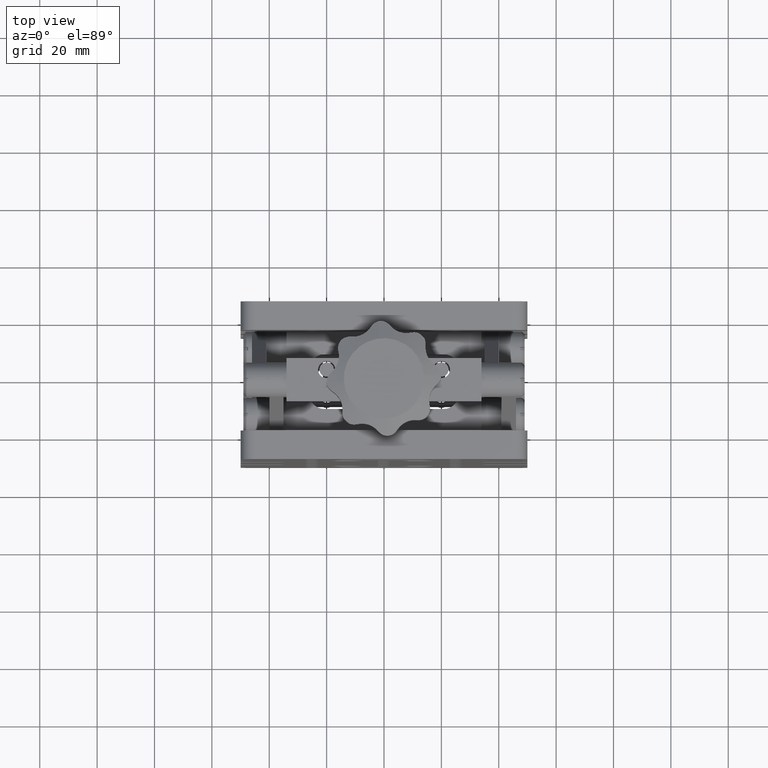
[diagram: clean part render]
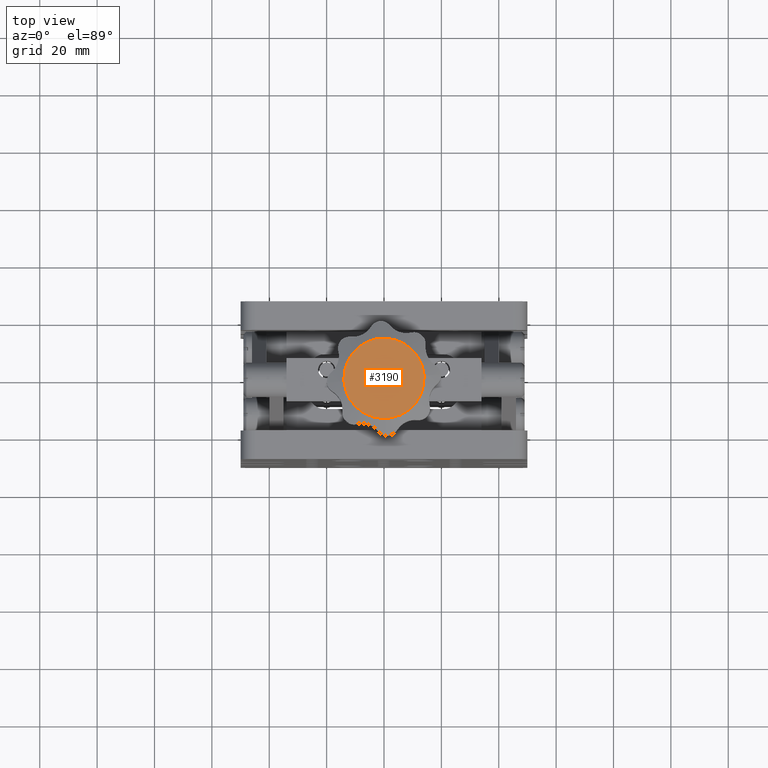
[diagram: same view with one face highlighted and labeled with its STEP entity id]
A machine part, top view. The second image highlights one B-rep face of the part: STEP entity #3190.
In plain terms, the highlighted planar face has unit normal (0, -0, -1).
Its self-contained STEP definition (entity closure, byte-faithful):
#112 = DIRECTION ( 'NONE',  ( -0.9976481765463006700, -0.06854280293248520000, 0.0000000000000000000 ) ) ;
#1008 = FACE_OUTER_BOUND ( 'NONE', #8826, .T. ) ;
#2282 = AXIS2_PLACEMENT_3D ( 'NONE', #10064, #21870, #112 ) ;
#3190 = ADVANCED_FACE ( 'NONE', ( #1008 ), #24126, .F. ) ;
#3963 = DIRECTION ( 'NONE',  ( 2.358787247327735000E-016, -1.029167336231909100E-016, -1.000000000000000000 ) ) ;
#5715 = EDGE_CURVE ( 'NONE', #12834, #17791, #18358, .T. ) ;
#6350 = CARTESIAN_POINT ( 'NONE',  ( 5.823777992624276300E-014, 17.49999999999999600, 126.5663180491997700 ) ) ;
#7253 = CARTESIAN_POINT ( 'NONE',  ( 13.96707447164826000, 18.45959924105479300, 126.5663180491997700 ) ) ;
#8826 = EDGE_LOOP ( 'NONE', ( #20347, #22596 ) ) ;
#10064 = CARTESIAN_POINT ( 'NONE',  ( 5.823777992624276300E-014, 17.49999999999999600, 126.5663180491997700 ) ) ;
#10292 = CARTESIAN_POINT ( 'NONE',  ( 11.46379018319393400, 1.314993239317295600, 126.5663180491996800 ) ) ;
#10340 = AXIS2_PLACEMENT_3D ( 'NONE', #10292, #3963, #21843 ) ;
#12407 = DIRECTION ( 'NONE',  ( -0.9976481765463006700, -0.06854280293248520000, 0.0000000000000000000 ) ) ;
#12834 = VERTEX_POINT ( 'NONE', #7253 ) ;
#13227 = CIRCLE ( 'NONE', #13622, 13.99999999999999800 ) ;
#13622 = AXIS2_PLACEMENT_3D ( 'NONE', #6350, #22063, #12407 ) ;
#17791 = VERTEX_POINT ( 'NONE', #21784 ) ;
#18358 = CIRCLE ( 'NONE', #2282, 13.99999999999999800 ) ;
#20347 = ORIENTED_EDGE ( 'NONE', *, *, #25272, .T. ) ;
#21784 = CARTESIAN_POINT ( 'NONE',  ( -13.96707447164815500, 16.54040075894520700, 126.5663180491997700 ) ) ;
#21843 = DIRECTION ( 'NONE',  ( 0.9976481765463006700, 0.06854280293248529700, 2.282697782245288100E-016 ) ) ;
#21870 = DIRECTION ( 'NONE',  ( -2.358787247327744800E-016, 1.029167336231908400E-016, 1.000000000000000000 ) ) ;
#22063 = DIRECTION ( 'NONE',  ( -2.358787247327744800E-016, 1.029167336231908400E-016, 1.000000000000000000 ) ) ;
#22596 = ORIENTED_EDGE ( 'NONE', *, *, #5715, .T. ) ;
#24126 = PLANE ( 'NONE',  #10340 ) ;
#25272 = EDGE_CURVE ( 'NONE', #17791, #12834, #13227, .T. ) ;